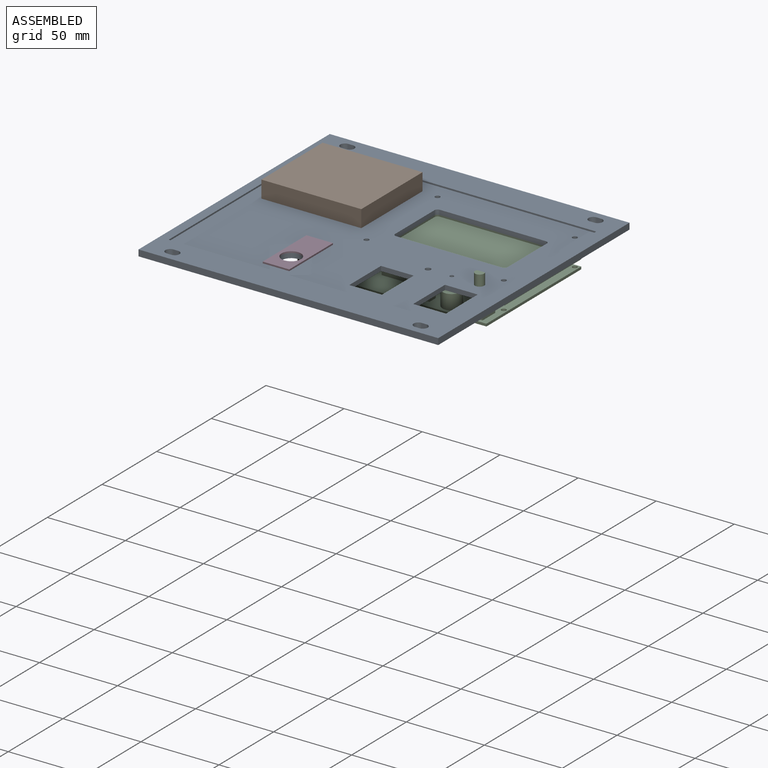
[diagram: assembled view]
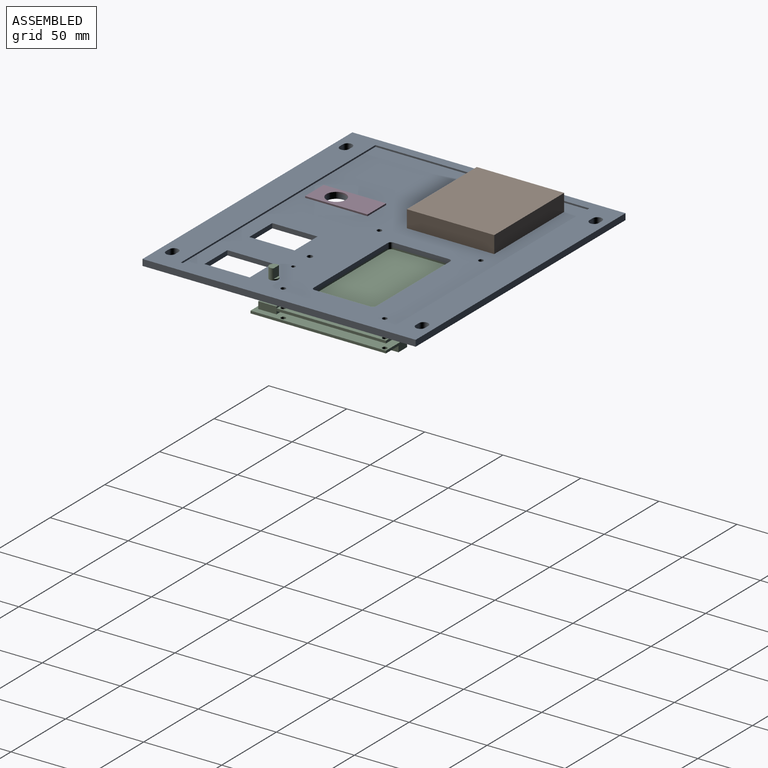
[diagram: assembled view, second angle]
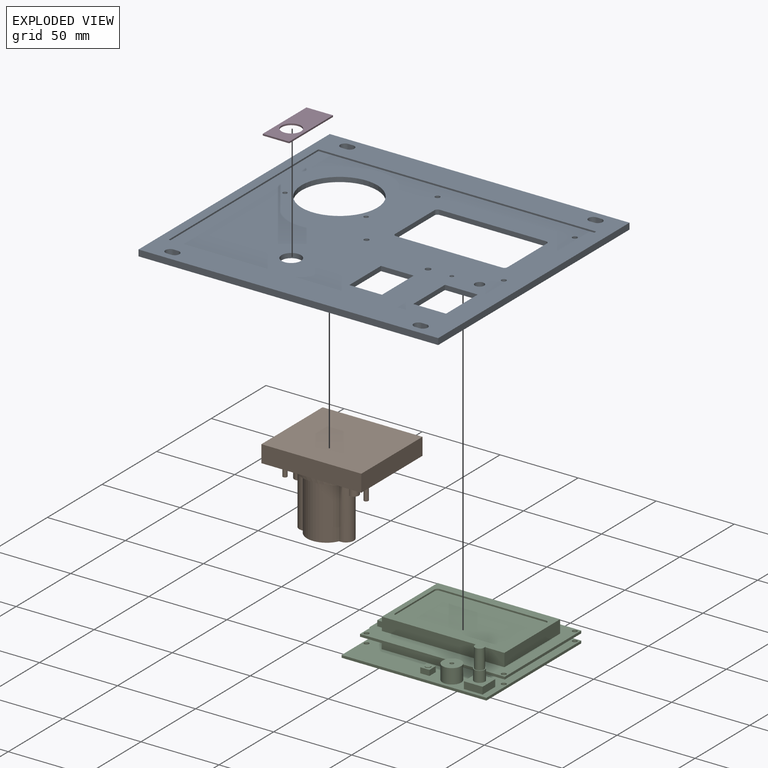
[diagram: exploded view]
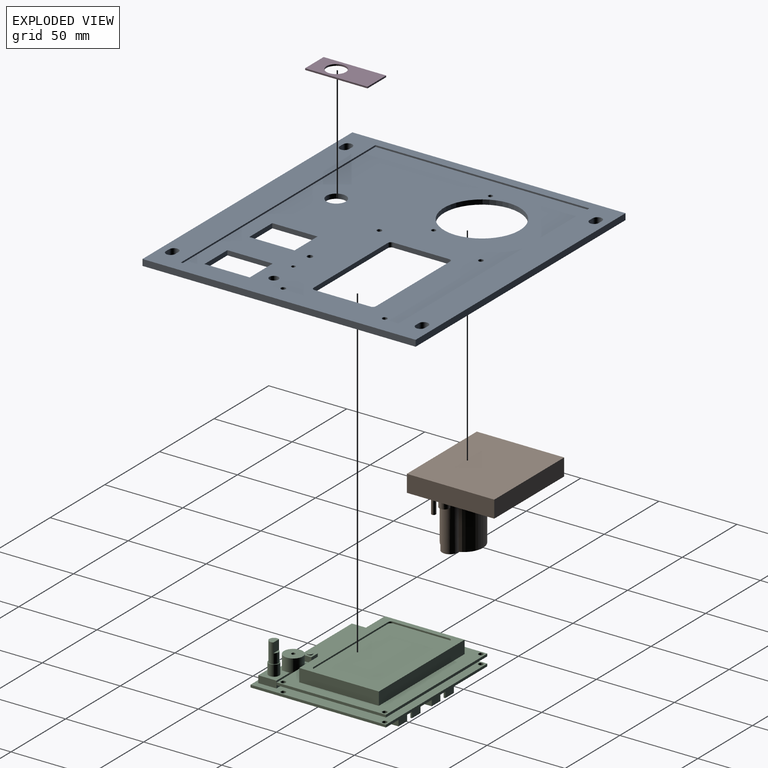
[diagram: exploded view, second angle]
ASSEMBLY  parts=4 mates=3
PART A: 54 faces, bbox 192x175x4 mm
  f0: plane 178x137mm, normal (0,0,1), area 18229.5mm2, adj f22,f23,f24,f25,f27,f28,f29,f30
  f1: plane 192x175mm, normal (0,0,-1), area 27258.4mm2, adj f2,f3,f4,f5,f6,f7,f8,f9
  f2: plane 192x4mm, normal (0,1,0), area 768mm2, adj f1,f3,f5,f26
  f3: plane 175x4mm, normal (-1,0,0), area 700mm2, adj f1,f2,f4,f26
  f4: plane 192x4mm, normal (0,-1,0), area 768mm2, adj f1,f3,f5,f26
  f5: plane 175x4mm, normal (1,0,0), area 700mm2, adj f1,f2,f4,f26
  f6: plane 4x3mm, normal (0,-1,0), area 12mm2, adj f1,f7,f9,f26
  f7: cylinder r=3mm len=6mm, axis (0,0,1), area 37.7mm2, adj f1,f6,f8,f26
  f8: plane 4x3mm, normal (0,1,0), area 12mm2, adj f1,f7,f9,f26
  f9: cylinder r=3mm len=6mm, axis (0,0,1), area 37.7mm2, adj f1,f6,f8,f26
  f10: plane 4x3mm, normal (0,1,0), area 12mm2, adj f1,f11,f13,f26
  f11: cylinder r=3mm len=6mm, axis (0,0,1), area 37.7mm2, adj f1,f10,f12,f26
  f12: plane 4x3mm, normal (0,-1,0), area 12mm2, adj f1,f11,f13,f26
  f13: cylinder r=3mm len=6mm, axis (0,0,1), area 37.7mm2, adj f1,f10,f12,f26
  f14: plane 4x3mm, normal (0,1,0), area 12mm2, adj f1,f15,f17,f26
  f15: cylinder r=3mm len=6mm, axis (0,0,1), area 37.7mm2, adj f1,f14,f16,f26
  f16: plane 4x3mm, normal (0,-1,0), area 12mm2, adj f1,f15,f17,f26
  f17: cylinder r=3mm len=6mm, axis (0,0,1), area 37.7mm2, adj f1,f14,f16,f26
  f18: plane 4x3mm, normal (0,-1,0), area 12mm2, adj f1,f19,f21,f26
  f19: cylinder r=3mm len=6mm, axis (0,0,1), area 37.7mm2, adj f1,f18,f20,f26
  f20: plane 4x3mm, normal (0,1,0), area 12mm2, adj f1,f19,f21,f26
  f21: cylinder r=3mm len=6mm, axis (0,0,1), area 37.7mm2, adj f1,f18,f20,f26
  f22: plane 137x1mm, normal (1,0,0), area 137mm2, adj f0,f23,f25,f26
  f23: plane 178x1mm, normal (0,-1,0), area 178mm2, adj f0,f22,f24,f26
  f24: plane 137x1mm, normal (-1,0,0), area 137mm2, adj f0,f23,f25,f26
  f25: plane 178x1mm, normal (0,1,0), area 178mm2, adj f0,f22,f24,f26
  f26: plane 192x175mm, normal (0,0,1), area 9028.9mm2, adj f2,f3,f4,f5,f6,f7,f8,f9
  f27: plane 21x3mm, normal (0,-1,0), area 63mm2, adj f0,f1,f28,f30
  f28: plane 29x3mm, normal (1,0,0), area 87mm2, adj f0,f1,f27,f29
  f29: plane 21x3mm, normal (0,1,0), area 63mm2, adj f0,f1,f28,f30
  f30: plane 29x3mm, normal (-1,0,0), area 87mm2, adj f0,f1,f27,f29
  f31: plane 21x3mm, normal (0,-1,0), area 63mm2, adj f0,f1,f32,f34
  f32: plane 29x3mm, normal (1,0,0), area 87mm2, adj f0,f1,f31,f33
  f33: plane 21x3mm, normal (0,1,0), area 63mm2, adj f0,f1,f32,f34
  f34: plane 29x3mm, normal (-1,0,0), area 87mm2, adj f0,f1,f31,f33
  f35: cylinder r=24.3mm len=48.6mm, axis (0,0,1), area 458mm2, adj f0,f1
  f36: cylinder r=1.4mm len=3mm, axis (0,0,1), area 26.4mm2, adj f0,f1
  f37: cylinder r=1.4mm len=3mm, axis (0,0,1), area 26.4mm2, adj f0,f1
  f38: cylinder r=2mm len=3mm, axis (0,0,1), area 9.4mm2, adj f0,f1,f39,f45
  f39: plane 68x3mm, normal (0,-1,0), area 204mm2, adj f0,f1,f38,f40
  f40: cylinder r=2mm len=3mm, axis (0,0,1), area 9.4mm2, adj f0,f1,f39,f41
  f41: plane 36x3mm, normal (1,0,0), area 108mm2, adj f0,f1,f40,f42
  f42: cylinder r=2mm len=3mm, axis (0,0,1), area 9.4mm2, adj f0,f1,f41,f43
  f43: plane 68x3mm, normal (0,1,0), area 204mm2, adj f0,f1,f42,f44
  f44: cylinder r=2mm len=3mm, axis (0,0,1), area 9.4mm2, adj f0,f1,f43,f45
  f45: plane 36x3mm, normal (-1,0,0), area 108mm2, adj f0,f1,f38,f44
  f46: cylinder r=1.25mm len=3mm, axis (0,0,1), area 23.6mm2, adj f0,f1
  f47: cylinder r=1.55mm len=3.1mm, axis (0,0,1), area 29.2mm2, adj f0,f1
  f48: cylinder r=2.94mm len=5.87mm, axis (0,0,1), area 55.3mm2, adj f0,f1
  f49: cylinder r=1.75mm len=3.5mm, axis (0,0,1), area 33mm2, adj f0,f1
  f50: cylinder r=1.55mm len=3.1mm, axis (0,0,1), area 29.2mm2, adj f0,f1
  f51: cylinder r=1.55mm len=3.1mm, axis (0,0,1), area 29.2mm2, adj f0,f1
  f52: cylinder r=1.55mm len=3.1mm, axis (0,0,1), area 29.2mm2, adj f0,f1
  f53: cylinder r=6.25mm len=12.5mm, axis (0,0,1), area 117.8mm2, adj f0,f1
PART B: 23 faces, bbox 64x56x48 mm
  f0: plane 20.15x10.71mm, normal (0,0,-1), area 35.3mm2, adj f1,f10,f17,f21
  f1: cylinder r=5mm len=34mm, axis (0,0,1), area 557mm2, adj f0,f11,f16,f17,f18,f21,f22
  f2: plane 20.15x10.71mm, normal (0,0,-1), area 35.3mm2, adj f3,f10,f17,f19
  f3: cylinder r=5mm len=34mm, axis (0,0,1), area 557mm2, adj f2,f11,f16,f17,f18,f19,f20
  f4: plane 56x11mm, normal (-1,0,0), area 616mm2, adj f5,f7,f8,f9
  f5: plane 64x11mm, normal (0,-1,0), area 704mm2, adj f4,f6,f8,f9
  f6: plane 56x11mm, normal (1,0,0), area 616mm2, adj f5,f7,f8,f9
  f7: plane 64x11mm, normal (0,1,0), area 704mm2, adj f4,f6,f8,f9
  f8: plane 64x56mm, normal (0,0,1), area 3584mm2, adj f4,f5,f6,f7
  f9: plane 64x56mm, normal (0,0,-1), area 1716.6mm2, adj f4,f5,f6,f7,f10,f12,f14
  f10: cylinder r=24.3mm len=48.6mm, axis (0,0,1), area 458mm2, adj f0,f2,f9,f11
  f11: plane 48.6x37.89mm, normal (0,0,-1), area 1172mm2, adj f1,f3,f10,f16,f19,f21
  f12: cylinder r=1.4mm len=11mm, axis (0,0,1), area 96.8mm2, adj f9,f13
  f13: plane 2.8x2.8mm, normal (0,0,-1), area 6.2mm2, adj f12
  f14: cylinder r=1.4mm len=11mm, axis (0,0,1), area 96.8mm2, adj f9,f15
  f15: plane 2.8x2.8mm, normal (0,0,-1), area 6.2mm2, adj f14
  f16: cylinder r=12.5mm len=34mm, axis (0,0,1), area 992.9mm2, adj f1,f3,f11,f18
  f17: cylinder r=12.5mm len=34mm, axis (0,0,1), area 992.9mm2, adj f0,f1,f2,f3,f18
  f18: plane 35x25mm, normal (0,0,-1), area 576.1mm2, adj f1,f3,f16,f17
  f19: cylinder r=3.19mm len=7mm, axis (0,0,1), area 84.8mm2, adj f2,f3,f11,f20
  f20: plane 6.39x4.21mm, normal (0,0,-1), area 18.2mm2, adj f3,f19
  f21: cylinder r=3.19mm len=7mm, axis (0,0,1), area 84.8mm2, adj f0,f1,f11,f22
  f22: plane 6.39x4.21mm, normal (0,0,-1), area 18.2mm2, adj f1,f21
PART C: 104 faces, bbox 102.9x86.8x34.7 mm
  f0: plane 26.4x3mm, normal (-1,0,0), area 28.1mm2, adj f3,f37,f41,f42,f97,f98,f99,f100
  f1: plane 6.9x6.45mm, normal (0,-1,0), area 44.5mm2, adj f82,f87,f92,f95
  f2: plane 6.9x6.45mm, normal (0,-1,0), area 44.5mm2, adj f73,f78,f91,f93
  f3: plane 92.75x86.75mm, normal (0,0,-1), area 6991.5mm2, adj f0,f10,f11,f12,f13,f14,f15,f16
  f4: plane 92.75x70mm, normal (0,0,1), area 2229.2mm2, adj f5,f48,f49,f50,f51,f52,f53,f54
  f5: plane 51x8.3mm, normal (-1,0,0), area 272.8mm2, adj f4,f57,f58,f59,f60,f62,f63
  f6: plane 92.75x86.75mm, normal (0,0,1), area 7604mm2, adj f10,f11,f12,f13,f14,f15,f16,f17
  f7: plane 6.83x6.83mm, normal (0,0,1), area 9.6mm2, adj f32,f33
  f8: plane 12x11.65mm, normal (0,0,1), area 103.2mm2, adj f22,f23,f24,f25,f32
  f9: plane 5.83x5.83mm, normal (0,0,1), area 24.4mm2, adj f26,f27,f28,f29,f30
  f10: plane 86.75x1.6mm, normal (-1,0,0), area 138.8mm2, adj f3,f6,f11,f13
  f11: plane 92.75x1.6mm, normal (0,-1,0), area 148.4mm2, adj f3,f6,f10,f12
  f12: plane 86.75x1.6mm, normal (1,0,0), area 138.8mm2, adj f3,f6,f11,f13
  f13: plane 92.75x1.6mm, normal (0,1,0), area 148.4mm2, adj f3,f6,f10,f12
  f14: cylinder r=1.55mm len=3.1mm, axis (0,0,-1), area 15.6mm2, adj f3,f6
  f15: cylinder r=1.55mm len=3.1mm, axis (0,0,-1), area 15.6mm2, adj f3,f6
  f16: cylinder r=1.55mm len=3.1mm, axis (0,0,-1), area 15.6mm2, adj f3,f6
  f17: cylinder r=1.55mm len=3.1mm, axis (0,0,-1), area 15.6mm2, adj f3,f6
  f18: cylinder r=6mm len=12mm, axis (0,0,-1), area 358.1mm2, adj f6,f19
  f19: plane 12x12mm, normal (0,0,1), area 108.2mm2, adj f18,f20
  f20: cylinder r=1.25mm len=5mm, axis (0,0,1), area 39.3mm2, adj f19,f21
  f21: plane 2.5x2.5mm, normal (0,0,1), area 4.9mm2, adj f20
  f22: plane 11.65x4.5mm, normal (1,0,0), area 52.4mm2, adj f6,f8,f23,f25
  f23: plane 12x4.5mm, normal (0,1,0), area 54mm2, adj f6,f8,f22,f24
  f24: plane 11.65x4.5mm, normal (-1,0,0), area 52.4mm2, adj f6,f8,f23,f25
  f25: plane 12x4.5mm, normal (0,-1,0), area 54mm2, adj f6,f8,f22,f24
  f26: plane 5.83x3.5mm, normal (1,0,0), area 20.4mm2, adj f6,f9,f27,f29
  f27: plane 5.83x3.5mm, normal (0,1,0), area 20.4mm2, adj f6,f9,f26,f28
  f28: plane 5.83x3.5mm, normal (-1,0,0), area 20.4mm2, adj f6,f9,f27,f29
  f29: plane 5.83x3.5mm, normal (0,-1,0), area 20.4mm2, adj f6,f9,f26,f28
  f30: cylinder r=1.75mm len=3.5mm, axis (0,0,-1), area 5.5mm2, adj f9,f31
  f31: plane 3.5x3.5mm, normal (0,0,1), area 9.6mm2, adj f30
  f32: cylinder r=3.42mm len=7mm, axis (0,0,-1), area 150.2mm2, adj f7,f8
  f33: cylinder r=2.94mm len=12.6mm, axis (0,0,-1), area 194.2mm2, adj f7,f34,f35,f36
  f34: plane 5.09x1.47mm, normal (0,0,1), area 5.3mm2, adj f33,f35
  f35: plane 6.2x5.09mm, normal (0,1,0), area 31.5mm2, adj f33,f34,f36
  f36: plane 5.87x4.4mm, normal (0,0,1), area 21.8mm2, adj f33,f35
  f37: plane 25.75x3mm, normal (0,1,0), area 77.2mm2, adj f0,f3,f38,f42
  f38: plane 24.4x3mm, normal (1,0,0), area 73.2mm2, adj f3,f37,f39,f42
  f39: plane 5.5x3mm, normal (0,-1,0), area 16.5mm2, adj f3,f38,f40,f42
  f40: plane 3x2mm, normal (0.71,-0.71,0), area 8.5mm2, adj f3,f39,f41,f42
  f41: plane 18.25x3mm, normal (0,-1,0), area 54.7mm2, adj f0,f3,f40,f42
  f42: plane 26.4x25.75mm, normal (0,0,-1), area 666.8mm2, adj f0,f37,f38,f39,f40,f41
  f43: plane 4.2x2.5mm, normal (-1,0,0), area 10.5mm2, adj f6,f44,f46,f47
  f44: plane 50x4.2mm, normal (0,-1,0), area 210mm2, adj f6,f43,f45,f47
  f45: plane 4.2x2.5mm, normal (1,0,0), area 10.5mm2, adj f6,f44,f46,f47
  f46: plane 50x4.2mm, normal (0,1,0), area 210mm2, adj f6,f43,f45,f47
  f47: plane 92.75x70mm, normal (0,0,-1), area 6337.3mm2, adj f43,f44,f45,f46,f48,f49,f50,f51
  f48: plane 70x1.6mm, normal (1,0,0), area 112mm2, adj f4,f47,f49,f51
  f49: plane 92.75x1.6mm, normal (0,1,0), area 148.4mm2, adj f4,f47,f48,f50
  f50: plane 70x1.6mm, normal (-1,0,0), area 112mm2, adj f4,f47,f49,f51
  f51: plane 92.75x1.6mm, normal (0,-1,0), area 148.4mm2, adj f4,f47,f48,f50
  f52: cylinder r=1.55mm len=3.1mm, axis (0,0,-1), area 15.6mm2, adj f4,f47
  f53: cylinder r=1.55mm len=3.1mm, axis (0,0,-1), area 15.6mm2, adj f4,f47
  f54: cylinder r=1.55mm len=3.1mm, axis (0,0,-1), area 15.6mm2, adj f4,f47
  f55: cylinder r=1.55mm len=3.1mm, axis (0,0,-1), area 15.6mm2, adj f4,f47
  f56: plane 51x8.3mm, normal (1,0,0), area 423.3mm2, adj f4,f57,f58,f59
  f57: plane 78.45x8.3mm, normal (0,1,0), area 651.1mm2, adj f4,f5,f56,f59
  f58: plane 78.45x8.3mm, normal (0,-1,0), area 651.1mm2, adj f4,f5,f56,f59
  f59: plane 78.45x51mm, normal (0,0,1), area 1124.4mm2, adj f5,f56,f57,f58,f64,f65,f66,f67
  f60: plane 5.4x3.5mm, normal (0,1,0), area 18.9mm2, adj f4,f5,f61,f63
  f61: plane 43x3.5mm, normal (-1,0,0), area 150.5mm2, adj f4,f60,f62,f63
  f62: plane 5.4x3.5mm, normal (0,-1,0), area 18.9mm2, adj f4,f5,f61,f63
  f63: plane 43x5.4mm, normal (0,0,1), area 232.2mm2, adj f5,f60,f61,f62
  f64: plane 68x1mm, normal (0,-1,0), area 68mm2, adj f59,f65,f71,f72
  f65: cylinder r=2mm len=2mm, axis (0,0,1), area 3.1mm2, adj f59,f64,f66,f72
  f66: plane 36x1mm, normal (-1,0,0), area 36mm2, adj f59,f65,f67,f72
  f67: cylinder r=2mm len=2mm, axis (0,0,1), area 3.1mm2, adj f59,f66,f68,f72
  f68: plane 68x1mm, normal (0,1,0), area 68mm2, adj f59,f67,f69,f72
  f69: cylinder r=2mm len=2mm, axis (0,0,1), area 3.1mm2, adj f59,f68,f70,f72
  f70: plane 36x1mm, normal (1,0,0), area 36mm2, adj f59,f69,f71,f72
  f71: cylinder r=2mm len=2mm, axis (0,0,1), area 3.1mm2, adj f59,f64,f70,f72
  f72: plane 72x40mm, normal (0,0,1), area 2876.6mm2, adj f64,f65,f66,f67,f68,f69,f70,f71
  f73: plane 20.2x8.85mm, normal (0,0,-1), area 49.7mm2, adj f2,f74,f75,f76,f77,f78,f79,f80
  f74: plane 9x8.85mm, normal (1,0,0), area 79.6mm2, adj f3,f73,f75,f77
  f75: plane 20.2x9mm, normal (0,-1,0), area 181.8mm2, adj f3,f73,f74,f76
  f76: plane 9x8.85mm, normal (-1,0,0), area 79.6mm2, adj f3,f73,f75,f77
  f77: plane 20.2x9mm, normal (0,1,0), area 153.4mm2, adj f3,f73,f74,f76,f91,f93,f94
  f78: plane 6.85x6.45mm, normal (-1,0,0), area 44.2mm2, adj f2,f73,f79,f91
  f79: plane 18.2x6.45mm, normal (0,1,0), area 117.4mm2, adj f73,f78,f80,f91
  f80: plane 6.85x6.45mm, normal (1,0,0), area 44.2mm2, adj f73,f79,f81,f91
  f81: plane 6.9x6.45mm, normal (0,-1,0), area 44.5mm2, adj f73,f80,f91,f94
  f82: plane 20.2x8.85mm, normal (0,0,-1), area 49.7mm2, adj f1,f83,f84,f85,f86,f87,f88,f89
  f83: plane 9x8.85mm, normal (1,0,0), area 79.6mm2, adj f3,f82,f84,f86
  f84: plane 20.2x9mm, normal (0,-1,0), area 181.8mm2, adj f3,f82,f83,f85
  f85: plane 9x8.85mm, normal (-1,0,0), area 79.6mm2, adj f3,f82,f84,f86
  f86: plane 20.2x9mm, normal (0,1,0), area 153.4mm2, adj f3,f82,f83,f85,f92,f95,f96
  f87: plane 6.85x6.45mm, normal (-1,0,0), area 44.2mm2, adj f1,f82,f88,f92
  f88: plane 18.2x6.45mm, normal (0,1,0), area 117.4mm2, adj f82,f87,f89,f92
  f89: plane 6.85x6.45mm, normal (1,0,0), area 44.2mm2, adj f82,f88,f90,f92
  f90: plane 6.9x6.45mm, normal (0,-1,0), area 44.5mm2, adj f82,f89,f92,f96
  f91: plane 18.2x7.85mm, normal (0,0,-1), area 129.1mm2, adj f2,f77,f78,f79,f80,f81,f93,f94
  f92: plane 18.2x7.85mm, normal (0,0,-1), area 129.1mm2, adj f1,f86,f87,f88,f89,f90,f95,f96
  f93: plane 6.45x1mm, normal (-1,0,0), area 6.5mm2, adj f2,f73,f77,f91
  f94: plane 6.45x1mm, normal (1,0,0), area 6.5mm2, adj f73,f77,f81,f91
  f95: plane 6.45x1mm, normal (-1,0,0), area 6.5mm2, adj f1,f82,f86,f92
  f96: plane 6.45x1mm, normal (1,0,0), area 6.5mm2, adj f82,f86,f90,f92
  f97: plane 23.75x10.4mm, normal (0,0,-1), area 246.6mm2, adj f0,f98,f100,f101,f102,f103
  f98: plane 9.4x2.15mm, normal (0,-1,0), area 20.2mm2, adj f0,f97,f99,f102
  f99: plane 23.75x10.4mm, normal (0,0,1), area 246.6mm2, adj f0,f98,f100,f101,f102,f103
  f100: plane 9.4x2.15mm, normal (0,1,0), area 20.2mm2, adj f0,f97,f99,f103
  f101: plane 21.75x2.15mm, normal (-1,0,0), area 46.8mm2, adj f97,f99,f102,f103
  f102: cylinder r=1mm len=2.15mm, axis (0,0,-1), area 3.4mm2, adj f97,f98,f99,f101
  f103: cylinder r=1mm len=2.15mm, axis (0,0,1), area 3.4mm2, adj f97,f99,f100,f101
PART D: 7 faces, bbox 17x40x1 mm
  f0: plane 40x1mm, normal (-1,0,0), area 40mm2, adj f1,f3,f5,f6
  f1: plane 17x1mm, normal (0,-1,0), area 17mm2, adj f0,f2,f5,f6
  f2: plane 40x1mm, normal (1,0,0), area 40mm2, adj f1,f3,f5,f6
  f3: plane 17x1mm, normal (0,1,0), area 17mm2, adj f0,f2,f5,f6
  f4: cylinder r=6.25mm len=12.5mm, axis (0,0,-1), area 39.3mm2, adj f5,f6
  f5: plane 40x17mm, normal (0,0,1), area 557.3mm2, adj f0,f1,f2,f3,f4
  f6: plane 40x17mm, normal (0,0,-1), area 557.3mm2, adj f0,f1,f2,f3,f4
PLACE A t=(-95.04,-87.87,-3.38)mm fixed
PLACE B t=(-47.67,2.61,-0.38)mm
PLACE C t=(38.79,16.45,-19.08)mm
PLACE D t=(-24.52,-62.82,-0.38)mm
MATE planar B.f9 <-> A.f0  axis (0,0,-1) through (-79.67,58.61,-0.38)mm
MATE planar D.f6 <-> A.f0  axis (0,0,-1) through (-24.52,-41.5,-0.38)mm
MATE planar C.f59 <-> A.f1  axis (0,0,1) through (38.99,4.92,-3.38)mm
